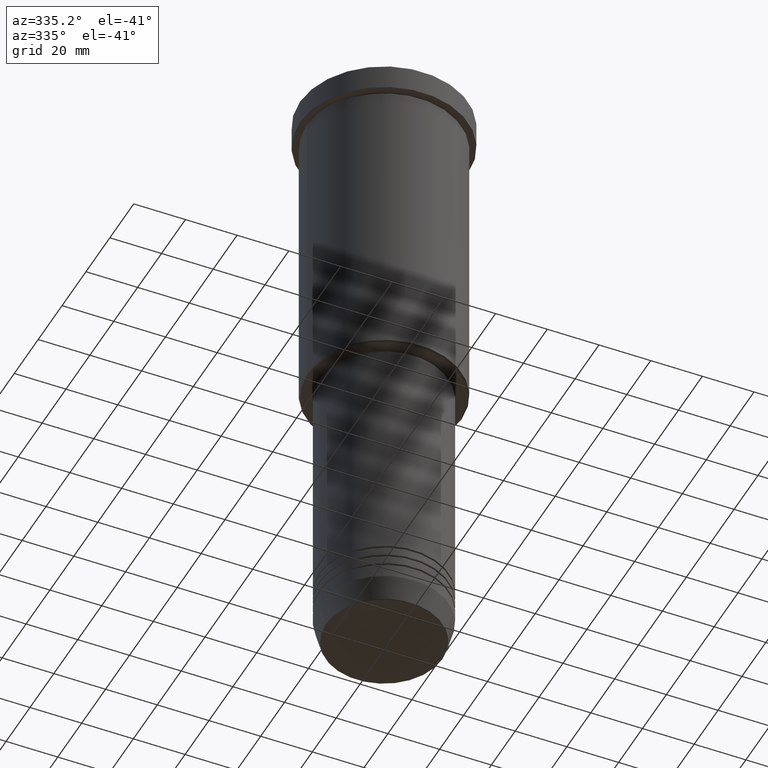
[diagram: clean part render]
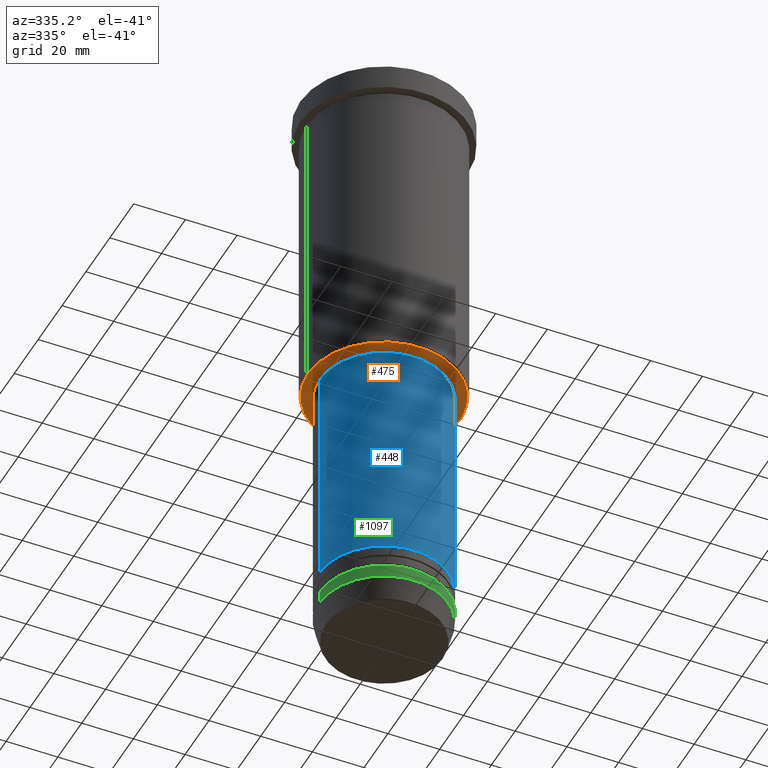
[diagram: same view with three faces highlighted in distinct colors, each labeled with its STEP entity id]
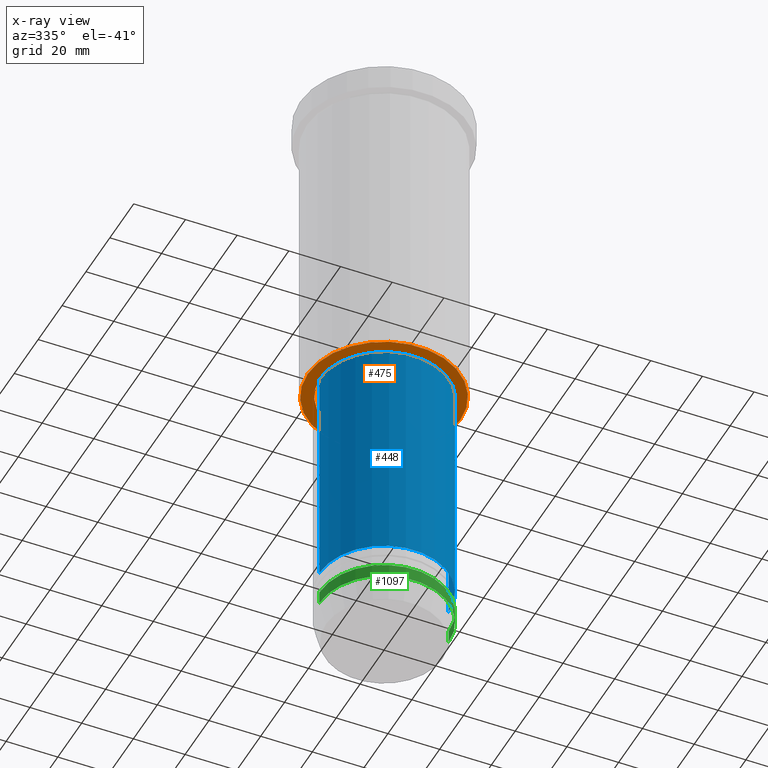
[diagram: x-ray of the same camera — body ghosted, the three highlighted faces saturated]
A machine part, auxiliary view with three faces highlighted in distinct colors.
The next image is the same camera in x-ray (body ghosted, the three faces saturated) — at least one of them is partly hidden behind the body in this view.
Their STEP definitions:

[orange] entity #475 — the highlighted planar face has unit normal (0, 0, -1).
#11 = AXIS2_PLACEMENT_3D ( 'NONE', #429, #800, #154 ) ;
#13 = DIRECTION ( 'NONE',  ( -1.000000000000000000, 0.000000000000000000, 0.000000000000000000 ) ) ;
#44 = ORIENTED_EDGE ( 'NONE', *, *, #648, .T. ) ;
#47 = EDGE_LOOP ( 'NONE', ( #588, #233 ) ) ;
#107 = DIRECTION ( 'NONE',  ( -0.000000000000000000, -0.000000000000000000, 1.000000000000000000 ) ) ;
#121 = CIRCLE ( 'NONE', #868, 24.50000000000000000 ) ;
#151 = ORIENTED_EDGE ( 'NONE', *, *, #330, .T. ) ;
#154 = DIRECTION ( 'NONE',  ( -1.000000000000000000, 0.000000000000000000, 0.000000000000000000 ) ) ;
#168 = AXIS2_PLACEMENT_3D ( 'NONE', #767, #1047, #1118 ) ;
#233 = ORIENTED_EDGE ( 'NONE', *, *, #924, .T. ) ;
#260 = CIRCLE ( 'NONE', #11, 29.49999999999993960 ) ;
#293 = FACE_OUTER_BOUND ( 'NONE', #1045, .T. ) ;
#330 = EDGE_CURVE ( 'NONE', #1167, #691, #405, .T. ) ;
#332 = VERTEX_POINT ( 'NONE', #467 ) ;
#365 = CARTESIAN_POINT ( 'NONE',  ( 0.000000000000000000, 0.000000000000000000, -126.0000000000000000 ) ) ;
#374 = CARTESIAN_POINT ( 'NONE',  ( 24.50000000000000000, 0.000000000000000000, -126.0000000000000000 ) ) ;
#378 = AXIS2_PLACEMENT_3D ( 'NONE', #827, #107, #464 ) ;
#405 = CIRCLE ( 'NONE', #431, 29.49999999999993960 ) ;
#429 = CARTESIAN_POINT ( 'NONE',  ( 0.000000000000000000, 0.000000000000000000, -126.0000000000000000 ) ) ;
#431 = AXIS2_PLACEMENT_3D ( 'NONE', #365, #1016, #13 ) ;
#438 = VERTEX_POINT ( 'NONE', #374 ) ;
#464 = DIRECTION ( 'NONE',  ( 1.000000000000000000, 0.000000000000000000, 0.000000000000000000 ) ) ;
#467 = CARTESIAN_POINT ( 'NONE',  ( -24.50000000000000000, 3.000384657911015469E-15, -126.0000000000000000 ) ) ;
#475 = ADVANCED_FACE ( 'NONE', ( #293, #880 ), #569, .T. ) ;
#569 = PLANE ( 'NONE',  #168 ) ;
#588 = ORIENTED_EDGE ( 'NONE', *, *, #703, .T. ) ;
#648 = EDGE_CURVE ( 'NONE', #691, #1167, #260, .T. ) ;
#691 = VERTEX_POINT ( 'NONE', #729 ) ;
#703 = EDGE_CURVE ( 'NONE', #438, #332, #121, .T. ) ;
#729 = CARTESIAN_POINT ( 'NONE',  ( 29.49999999999993960, 0.000000000000000000, -126.0000000000000000 ) ) ;
#764 = CIRCLE ( 'NONE', #378, 24.50000000000000000 ) ;
#767 = CARTESIAN_POINT ( 'NONE',  ( 0.000000000000000000, 30.00000000000000000, -126.0000000000000000 ) ) ;
#800 = DIRECTION ( 'NONE',  ( 0.000000000000000000, 0.000000000000000000, -1.000000000000000000 ) ) ;
#817 = DIRECTION ( 'NONE',  ( -0.000000000000000000, -0.000000000000000000, 1.000000000000000000 ) ) ;
#827 = CARTESIAN_POINT ( 'NONE',  ( 0.000000000000000000, 0.000000000000000000, -126.0000000000000000 ) ) ;
#868 = AXIS2_PLACEMENT_3D ( 'NONE', #985, #817, #1176 ) ;
#880 = FACE_BOUND ( 'NONE', #47, .T. ) ;
#915 = CARTESIAN_POINT ( 'NONE',  ( -29.49999999999993960, 3.643324227463372235E-15, -126.0000000000000000 ) ) ;
#924 = EDGE_CURVE ( 'NONE', #332, #438, #764, .T. ) ;
#985 = CARTESIAN_POINT ( 'NONE',  ( 0.000000000000000000, 0.000000000000000000, -126.0000000000000000 ) ) ;
#1016 = DIRECTION ( 'NONE',  ( 0.000000000000000000, 0.000000000000000000, -1.000000000000000000 ) ) ;
#1045 = EDGE_LOOP ( 'NONE', ( #44, #151 ) ) ;
#1047 = DIRECTION ( 'NONE',  ( 0.000000000000000000, 0.000000000000000000, -1.000000000000000000 ) ) ;
#1118 = DIRECTION ( 'NONE',  ( -1.000000000000000000, 0.000000000000000000, -0.000000000000000000 ) ) ;
#1167 = VERTEX_POINT ( 'NONE', #915 ) ;
#1176 = DIRECTION ( 'NONE',  ( 1.000000000000000000, 0.000000000000000000, 0.000000000000000000 ) ) ;

[blue] entity #448 — the highlighted cylindrical surface (partial cylindrical patch) has radius 25 mm, axis along (-0, -0, 1).
#75 = EDGE_CURVE ( 'NONE', #240, #490, #247, .T. ) ;
#113 = CARTESIAN_POINT ( 'NONE',  ( 25.00000000000000000, 0.000000000000000000, -217.0000000000000000 ) ) ;
#166 = CARTESIAN_POINT ( 'NONE',  ( 25.00000000000000355, 0.000000000000000000, 0.000000000000000000 ) ) ;
#240 = VERTEX_POINT ( 'NONE', #113 ) ;
#247 = LINE ( 'NONE', #166, #289 ) ;
#258 = EDGE_CURVE ( 'NONE', #791, #490, #1166, .T. ) ;
#289 = VECTOR ( 'NONE', #990, 1000.000000000000000 ) ;
#319 = CYLINDRICAL_SURFACE ( 'NONE', #504, 25.00000000000000355 ) ;
#342 = DIRECTION ( 'NONE',  ( 1.000000000000000000, 0.000000000000000000, 0.000000000000000000 ) ) ;
#419 = EDGE_CURVE ( 'NONE', #788, #791, #646, .T. ) ;
#448 = ADVANCED_FACE ( 'NONE', ( #506 ), #319, .T. ) ;
#490 = VERTEX_POINT ( 'NONE', #946 ) ;
#504 = AXIS2_PLACEMENT_3D ( 'NONE', #850, #591, #582 ) ;
#506 = FACE_OUTER_BOUND ( 'NONE', #638, .T. ) ;
#527 = AXIS2_PLACEMENT_3D ( 'NONE', #1162, #694, #342 ) ;
#533 = CARTESIAN_POINT ( 'NONE',  ( -25.00000000000001066, 3.061616997868384226E-15, -127.0000000000000000 ) ) ;
#546 = DIRECTION ( 'NONE',  ( -0.000000000000000000, -0.000000000000000000, 1.000000000000000000 ) ) ;
#582 = DIRECTION ( 'NONE',  ( 1.000000000000000000, 0.000000000000000000, 0.000000000000000000 ) ) ;
#590 = EDGE_CURVE ( 'NONE', #788, #240, #1043, .T. ) ;
#591 = DIRECTION ( 'NONE',  ( -0.000000000000000000, -0.000000000000000000, 1.000000000000000000 ) ) ;
#611 = CARTESIAN_POINT ( 'NONE',  ( -25.00000000000000000, 3.061616997868383437E-15, -217.0000000000000000 ) ) ;
#638 = EDGE_LOOP ( 'NONE', ( #768, #865, #779, #1070 ) ) ;
#642 = AXIS2_PLACEMENT_3D ( 'NONE', #672, #1041, #844 ) ;
#646 = LINE ( 'NONE', #1010, #1069 ) ;
#672 = CARTESIAN_POINT ( 'NONE',  ( 0.000000000000000000, 0.000000000000000000, -127.0000000000000000 ) ) ;
#694 = DIRECTION ( 'NONE',  ( -0.000000000000000000, -0.000000000000000000, 1.000000000000000000 ) ) ;
#768 = ORIENTED_EDGE ( 'NONE', *, *, #419, .F. ) ;
#779 = ORIENTED_EDGE ( 'NONE', *, *, #75, .T. ) ;
#788 = VERTEX_POINT ( 'NONE', #611 ) ;
#791 = VERTEX_POINT ( 'NONE', #533 ) ;
#844 = DIRECTION ( 'NONE',  ( 1.000000000000000000, 0.000000000000000000, 0.000000000000000000 ) ) ;
#850 = CARTESIAN_POINT ( 'NONE',  ( 0.000000000000000000, 0.000000000000000000, 0.000000000000000000 ) ) ;
#865 = ORIENTED_EDGE ( 'NONE', *, *, #590, .T. ) ;
#946 = CARTESIAN_POINT ( 'NONE',  ( 25.00000000000000711, 0.000000000000000000, -127.0000000000000000 ) ) ;
#990 = DIRECTION ( 'NONE',  ( -0.000000000000000000, -0.000000000000000000, 1.000000000000000000 ) ) ;
#1010 = CARTESIAN_POINT ( 'NONE',  ( -25.00000000000000355, 3.061616997868383437E-15, 0.000000000000000000 ) ) ;
#1041 = DIRECTION ( 'NONE',  ( -0.000000000000000000, -0.000000000000000000, 1.000000000000000000 ) ) ;
#1043 = CIRCLE ( 'NONE', #527, 25.00000000000000000 ) ;
#1069 = VECTOR ( 'NONE', #546, 1000.000000000000000 ) ;
#1070 = ORIENTED_EDGE ( 'NONE', *, *, #258, .F. ) ;
#1162 = CARTESIAN_POINT ( 'NONE',  ( 0.000000000000000000, 0.000000000000000000, -217.0000000000000000 ) ) ;
#1166 = CIRCLE ( 'NONE', #642, 25.00000000000000711 ) ;

[green] entity #1097 — the highlighted cylindrical surface (partial cylindrical patch) has radius 25 mm, axis along (-0, -0, 1).
#9 = AXIS2_PLACEMENT_3D ( 'NONE', #1024, #828, #190 ) ;
#24 = DIRECTION ( 'NONE',  ( -0.000000000000000000, -0.000000000000000000, 1.000000000000000000 ) ) ;
#38 = ORIENTED_EDGE ( 'NONE', *, *, #220, .F. ) ;
#60 = LINE ( 'NONE', #888, #676 ) ;
#80 = ORIENTED_EDGE ( 'NONE', *, *, #291, .T. ) ;
#109 = AXIS2_PLACEMENT_3D ( 'NONE', #229, #589, #663 ) ;
#171 = CARTESIAN_POINT ( 'NONE',  ( 25.00000000000000000, 0.000000000000000000, -231.0000000000000000 ) ) ;
#190 = DIRECTION ( 'NONE',  ( 1.000000000000000000, 0.000000000000000000, 0.000000000000000000 ) ) ;
#220 = EDGE_CURVE ( 'NONE', #301, #224, #1130, .T. ) ;
#224 = VERTEX_POINT ( 'NONE', #761 ) ;
#229 = CARTESIAN_POINT ( 'NONE',  ( 0.000000000000000000, 0.000000000000000000, 0.000000000000000000 ) ) ;
#268 = CARTESIAN_POINT ( 'NONE',  ( 25.00000000000000000, 0.000000000000000000, -226.0000000000000000 ) ) ;
#283 = DIRECTION ( 'NONE',  ( 1.000000000000000000, 0.000000000000000000, 0.000000000000000000 ) ) ;
#291 = EDGE_CURVE ( 'NONE', #301, #683, #720, .T. ) ;
#301 = VERTEX_POINT ( 'NONE', #843 ) ;
#316 = VERTEX_POINT ( 'NONE', #268 ) ;
#393 = EDGE_LOOP ( 'NONE', ( #38, #80, #962, #899 ) ) ;
#404 = FACE_OUTER_BOUND ( 'NONE', #393, .T. ) ;
#544 = DIRECTION ( 'NONE',  ( -0.000000000000000000, -0.000000000000000000, 1.000000000000000000 ) ) ;
#552 = CIRCLE ( 'NONE', #848, 25.00000000000000000 ) ;
#589 = DIRECTION ( 'NONE',  ( -0.000000000000000000, -0.000000000000000000, 1.000000000000000000 ) ) ;
#649 = EDGE_CURVE ( 'NONE', #683, #316, #60, .T. ) ;
#663 = DIRECTION ( 'NONE',  ( 1.000000000000000000, 0.000000000000000000, 0.000000000000000000 ) ) ;
#676 = VECTOR ( 'NONE', #1169, 1000.000000000000000 ) ;
#683 = VERTEX_POINT ( 'NONE', #171 ) ;
#720 = CIRCLE ( 'NONE', #9, 25.00000000000000000 ) ;
#761 = CARTESIAN_POINT ( 'NONE',  ( -25.00000000000000000, 3.061616997868383043E-15, -226.0000000000000000 ) ) ;
#828 = DIRECTION ( 'NONE',  ( -0.000000000000000000, -0.000000000000000000, 1.000000000000000000 ) ) ;
#843 = CARTESIAN_POINT ( 'NONE',  ( -25.00000000000000000, 3.061616997868383043E-15, -231.0000000000000000 ) ) ;
#845 = EDGE_CURVE ( 'NONE', #224, #316, #552, .T. ) ;
#848 = AXIS2_PLACEMENT_3D ( 'NONE', #1009, #544, #283 ) ;
#853 = VECTOR ( 'NONE', #24, 1000.000000000000000 ) ;
#888 = CARTESIAN_POINT ( 'NONE',  ( 25.00000000000000000, 0.000000000000000000, 0.000000000000000000 ) ) ;
#899 = ORIENTED_EDGE ( 'NONE', *, *, #845, .F. ) ;
#962 = ORIENTED_EDGE ( 'NONE', *, *, #649, .T. ) ;
#1009 = CARTESIAN_POINT ( 'NONE',  ( 0.000000000000000000, 0.000000000000000000, -226.0000000000000000 ) ) ;
#1024 = CARTESIAN_POINT ( 'NONE',  ( 0.000000000000000000, 0.000000000000000000, -231.0000000000000000 ) ) ;
#1032 = CARTESIAN_POINT ( 'NONE',  ( -25.00000000000000000, 3.061616997868383043E-15, 0.000000000000000000 ) ) ;
#1097 = ADVANCED_FACE ( 'NONE', ( #404 ), #1126, .T. ) ;
#1126 = CYLINDRICAL_SURFACE ( 'NONE', #109, 25.00000000000000000 ) ;
#1130 = LINE ( 'NONE', #1032, #853 ) ;
#1169 = DIRECTION ( 'NONE',  ( -0.000000000000000000, -0.000000000000000000, 1.000000000000000000 ) ) ;